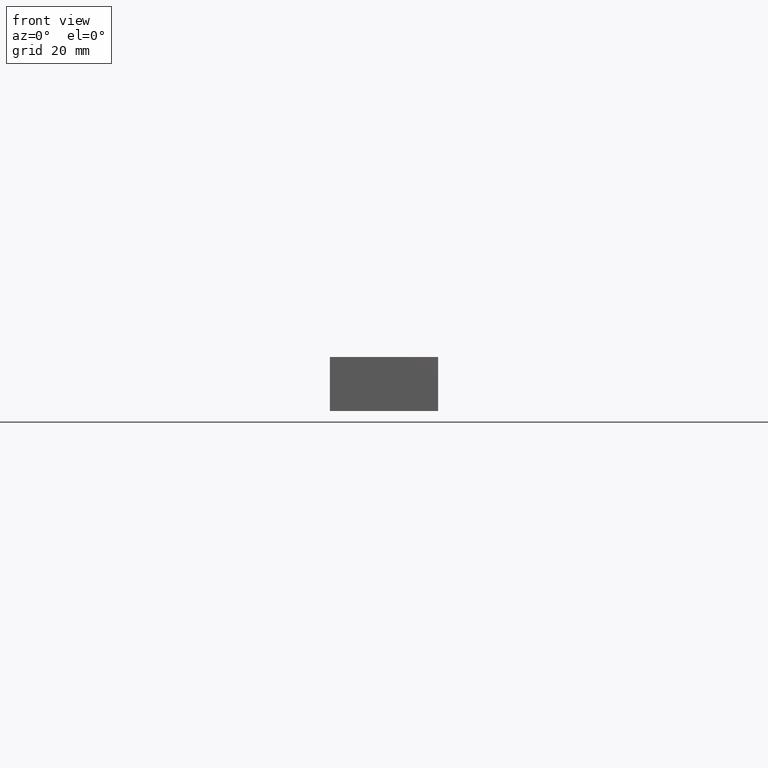
[diagram: clean part render]
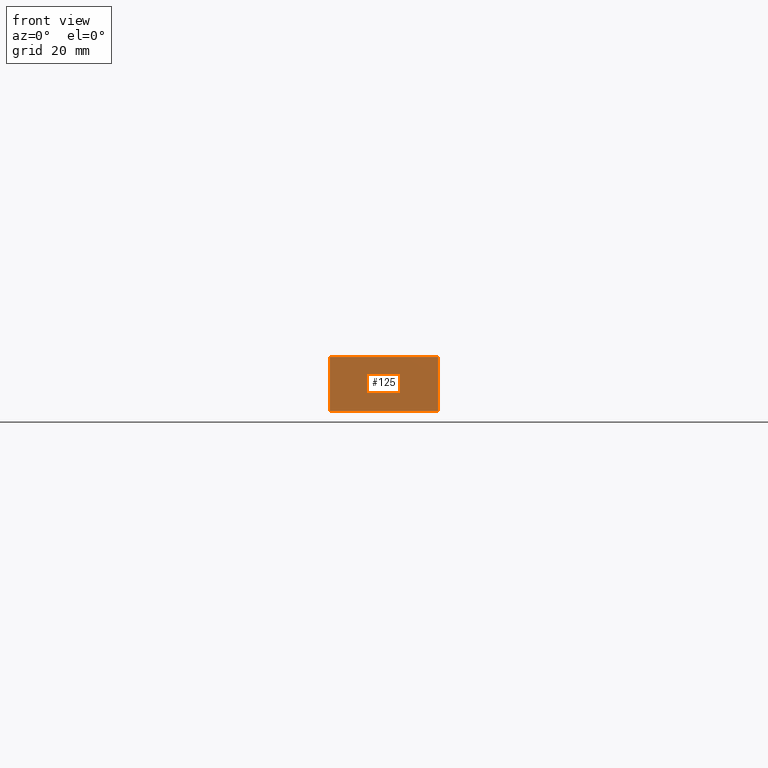
[diagram: same view with one face highlighted and labeled with its STEP entity id]
A machine part, front view. The second image highlights one B-rep face of the part: STEP entity #125.
In plain terms, the highlighted planar face has unit normal (0, -1, 0).
Its self-contained STEP definition (entity closure, byte-faithful):
#9 = ORIENTED_EDGE ( 'NONE', *, *, #171, .F. ) ;
#24 = VERTEX_POINT ( 'NONE', #74 ) ;
#27 = LINE ( 'NONE', #46, #148 ) ;
#32 = VECTOR ( 'NONE', #219, 1000.000000000000000 ) ;
#38 = DIRECTION ( 'NONE',  ( 0.0000000000000000000, -1.000000000000000000, 0.0000000000000000000 ) ) ;
#39 = EDGE_CURVE ( 'NONE', #97, #213, #232, .T. ) ;
#46 = CARTESIAN_POINT ( 'NONE',  ( 30.00000000000000000, 0.0000000000000000000, -4.999999999999999100 ) ) ;
#64 = AXIS2_PLACEMENT_3D ( 'NONE', #142, #38, #76 ) ;
#74 = CARTESIAN_POINT ( 'NONE',  ( 0.0000000000000000000, 0.0000000000000000000, -4.999999999999999100 ) ) ;
#75 = ORIENTED_EDGE ( 'NONE', *, *, #152, .T. ) ;
#76 = DIRECTION ( 'NONE',  ( 0.0000000000000000000, -0.0000000000000000000, -1.000000000000000000 ) ) ;
#87 = CARTESIAN_POINT ( 'NONE',  ( 0.0000000000000000000, 0.0000000000000000000, 10.00000000000000000 ) ) ;
#88 = EDGE_LOOP ( 'NONE', ( #211, #9, #75, #184 ) ) ;
#89 = PLANE ( 'NONE',  #64 ) ;
#93 = EDGE_CURVE ( 'NONE', #153, #213, #27, .T. ) ;
#97 = VERTEX_POINT ( 'NONE', #103 ) ;
#101 = CARTESIAN_POINT ( 'NONE',  ( 30.00000000000000000, 0.0000000000000000000, 10.00000000000000000 ) ) ;
#103 = CARTESIAN_POINT ( 'NONE',  ( 0.0000000000000000000, 0.0000000000000000000, 10.00000000000000000 ) ) ;
#116 = CARTESIAN_POINT ( 'NONE',  ( 0.0000000000000000000, 0.0000000000000000000, -4.999999999999999100 ) ) ;
#125 = ADVANCED_FACE ( 'NONE', ( #189 ), #89, .T. ) ;
#129 = VECTOR ( 'NONE', #130, 1000.000000000000000 ) ;
#130 = DIRECTION ( 'NONE',  ( 1.000000000000000000, 0.0000000000000000000, 0.0000000000000000000 ) ) ;
#133 = LINE ( 'NONE', #116, #210 ) ;
#142 = CARTESIAN_POINT ( 'NONE',  ( 0.0000000000000000000, 0.0000000000000000000, -4.999999999999999100 ) ) ;
#148 = VECTOR ( 'NONE', #237, 1000.000000000000000 ) ;
#152 = EDGE_CURVE ( 'NONE', #24, #153, #228, .T. ) ;
#153 = VERTEX_POINT ( 'NONE', #226 ) ;
#171 = EDGE_CURVE ( 'NONE', #24, #97, #133, .T. ) ;
#184 = ORIENTED_EDGE ( 'NONE', *, *, #93, .T. ) ;
#187 = CARTESIAN_POINT ( 'NONE',  ( 0.0000000000000000000, 0.0000000000000000000, -4.999999999999999100 ) ) ;
#189 = FACE_OUTER_BOUND ( 'NONE', #88, .T. ) ;
#210 = VECTOR ( 'NONE', #220, 1000.000000000000000 ) ;
#211 = ORIENTED_EDGE ( 'NONE', *, *, #39, .F. ) ;
#213 = VERTEX_POINT ( 'NONE', #101 ) ;
#219 = DIRECTION ( 'NONE',  ( 1.000000000000000000, 0.0000000000000000000, 0.0000000000000000000 ) ) ;
#220 = DIRECTION ( 'NONE',  ( 0.0000000000000000000, 0.0000000000000000000, 1.000000000000000000 ) ) ;
#226 = CARTESIAN_POINT ( 'NONE',  ( 30.00000000000000000, 0.0000000000000000000, -4.999999999999999100 ) ) ;
#228 = LINE ( 'NONE', #187, #129 ) ;
#232 = LINE ( 'NONE', #87, #32 ) ;
#237 = DIRECTION ( 'NONE',  ( 0.0000000000000000000, 0.0000000000000000000, 1.000000000000000000 ) ) ;